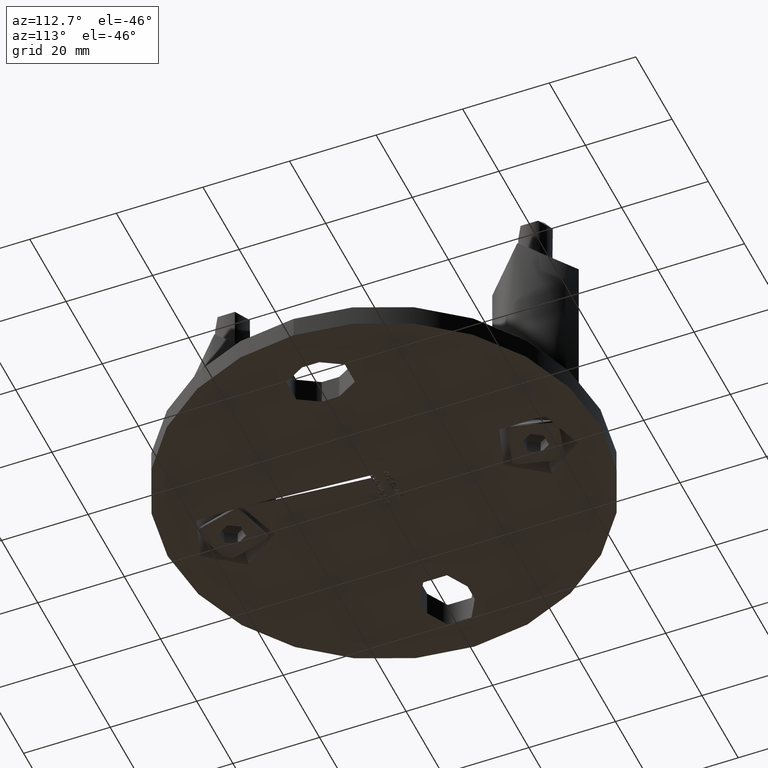
[diagram: clean part render]
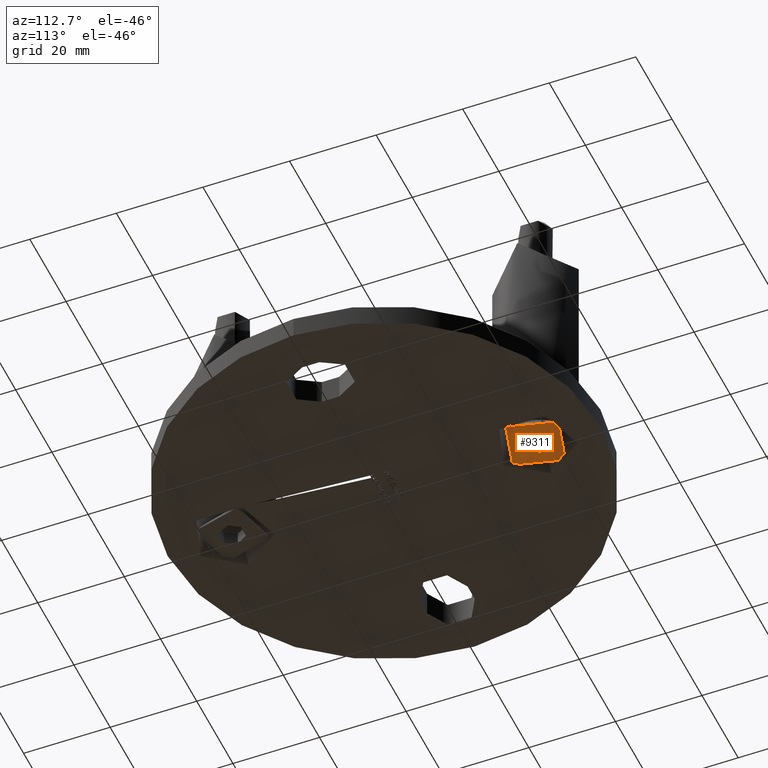
[diagram: same view with one face highlighted and labeled with its STEP entity id]
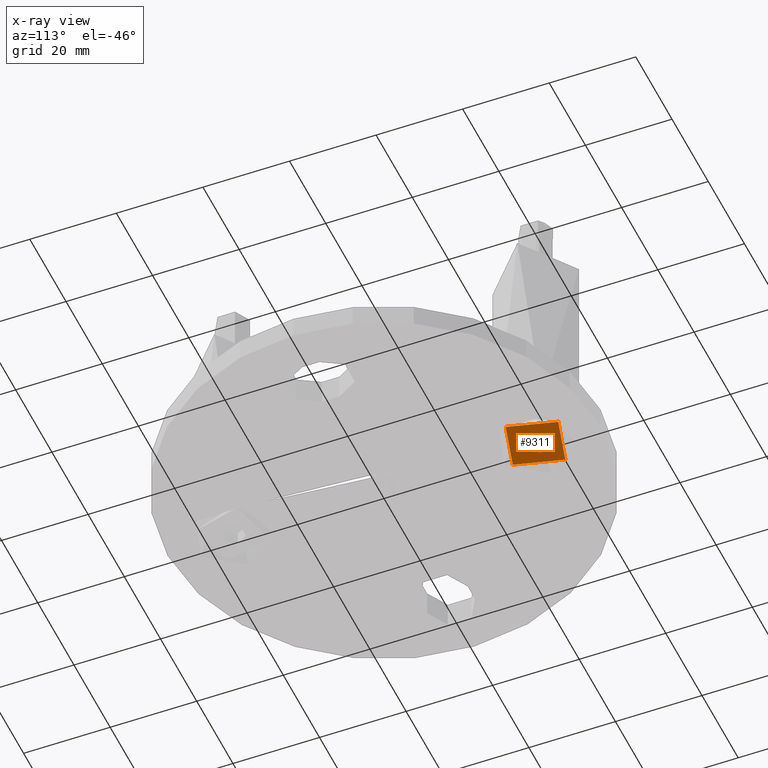
[diagram: x-ray of the same camera — body ghosted, the highlighted face saturated]
A machine part, auxiliary view. The second image highlights one B-rep face of the part: STEP entity #9311.
The next image is the same camera in x-ray: the body ghosted, the highlighted face saturated — about 0% of this face is hidden behind the body in this view.
In plain terms, the highlighted planar face has unit normal (0, 0, -1).
Its self-contained STEP definition (entity closure, byte-faithful):
#112 = CARTESIAN_POINT ( 'NONE',  ( -1.443375672974064800, 2.499999999999999600, 0.0000000000000000000 ) ) ;
#220 = VERTEX_POINT ( 'NONE', #13610 ) ;
#593 = EDGE_CURVE ( 'NONE', #220, #4972, #13020, .T. ) ;
#1370 = CARTESIAN_POINT ( 'NONE',  ( 1.443375672974064800, 2.499999999999999100, 0.0000000000000000000 ) ) ;
#2395 = ORIENTED_EDGE ( 'NONE', *, *, #9972, .F. ) ;
#2402 = DIRECTION ( 'NONE',  ( -0.5000000000000001100, -0.8660254037844384900, -0.0000000000000000000 ) ) ;
#2407 = ORIENTED_EDGE ( 'NONE', *, *, #14464, .T. ) ;
#2681 = VECTOR ( 'NONE', #5923, 1000.000000000000000 ) ;
#2832 = LINE ( 'NONE', #3736, #15077 ) ;
#3468 = CIRCLE ( 'NONE', #16210, 8.000000000000000000 ) ;
#3480 = CARTESIAN_POINT ( 'NONE',  ( -2.886751345948131300, -1.752598683377171700E-015, 0.0000000000000000000 ) ) ;
#3606 = VERTEX_POINT ( 'NONE', #13101 ) ;
#3736 = CARTESIAN_POINT ( 'NONE',  ( 2.886751345948128700, 4.839032702589593100E-016, 0.0000000000000000000 ) ) ;
#4441 = DIRECTION ( 'NONE',  ( -0.0000000000000000000, 1.224646799147353200E-016, -1.000000000000000000 ) ) ;
#4656 = EDGE_CURVE ( 'NONE', #10045, #14459, #2832, .T. ) ;
#4972 = VERTEX_POINT ( 'NONE', #9082 ) ;
#4983 = LINE ( 'NONE', #10456, #16000 ) ;
#5088 = PLANE ( 'NONE',  #15882 ) ;
#5136 = CARTESIAN_POINT ( 'NONE',  ( 0.0000000000000000000, 8.000000000000000000, 2.449293598294705900E-016 ) ) ;
#5182 = DIRECTION ( 'NONE',  ( -0.0000000000000000000, 1.224646799147353200E-016, -1.000000000000000000 ) ) ;
#5392 = DIRECTION ( 'NONE',  ( -0.4999999999999998900, 0.8660254037844386000, 0.0000000000000000000 ) ) ;
#5923 = DIRECTION ( 'NONE',  ( -1.000000000000000000, 0.0000000000000000000, 0.0000000000000000000 ) ) ;
#5969 = ORIENTED_EDGE ( 'NONE', *, *, #9701, .F. ) ;
#6145 = ORIENTED_EDGE ( 'NONE', *, *, #4656, .F. ) ;
#6216 = EDGE_CURVE ( 'NONE', #3606, #220, #4983, .T. ) ;
#6272 = VECTOR ( 'NONE', #13998, 1000.000000000000200 ) ;
#7071 = FACE_OUTER_BOUND ( 'NONE', #10198, .T. ) ;
#7101 = VERTEX_POINT ( 'NONE', #1370 ) ;
#7325 = CARTESIAN_POINT ( 'NONE',  ( 1.443375672974063200, -2.500000000000000000, -0.0000000000000000000 ) ) ;
#7396 = CARTESIAN_POINT ( 'NONE',  ( 1.443375672974064800, 2.499999999999999100, 0.0000000000000000000 ) ) ;
#7491 = FACE_BOUND ( 'NONE', #7748, .T. ) ;
#7748 = EDGE_LOOP ( 'NONE', ( #9206, #2395, #6145, #5969, #8699, #9419 ) ) ;
#8271 = CARTESIAN_POINT ( 'NONE',  ( 0.0000000000000000000, 1.799711739194229100E-031, -1.469576158976823900E-015 ) ) ;
#8633 = LINE ( 'NONE', #7325, #2681 ) ;
#8699 = ORIENTED_EDGE ( 'NONE', *, *, #10618, .F. ) ;
#8807 = VECTOR ( 'NONE', #8821, 1000.000000000000000 ) ;
#8821 = DIRECTION ( 'NONE',  ( 1.000000000000000000, -1.502314598737159000E-016, 0.0000000000000000000 ) ) ;
#9029 = LINE ( 'NONE', #7396, #6272 ) ;
#9082 = CARTESIAN_POINT ( 'NONE',  ( -1.443375672974064800, 2.499999999999999600, 0.0000000000000000000 ) ) ;
#9206 = ORIENTED_EDGE ( 'NONE', *, *, #6216, .F. ) ;
#9311 = ADVANCED_FACE ( 'NONE', ( #7491, #7071 ), #5088, .T. ) ;
#9419 = ORIENTED_EDGE ( 'NONE', *, *, #593, .F. ) ;
#9701 = EDGE_CURVE ( 'NONE', #7101, #10045, #9029, .T. ) ;
#9972 = EDGE_CURVE ( 'NONE', #14459, #3606, #8633, .T. ) ;
#10045 = VERTEX_POINT ( 'NONE', #12273 ) ;
#10198 = EDGE_LOOP ( 'NONE', ( #2407 ) ) ;
#10456 = CARTESIAN_POINT ( 'NONE',  ( -1.443375672974067700, -2.500000000000000000, 0.0000000000000000000 ) ) ;
#10618 = EDGE_CURVE ( 'NONE', #4972, #7101, #11166, .T. ) ;
#10920 = VERTEX_POINT ( 'NONE', #15944 ) ;
#11166 = LINE ( 'NONE', #112, #8807 ) ;
#12057 = CARTESIAN_POINT ( 'NONE',  ( 1.443375672974063200, -2.500000000000000000, -0.0000000000000000000 ) ) ;
#12273 = CARTESIAN_POINT ( 'NONE',  ( 2.886751345948128700, 4.839032702589593100E-016, 0.0000000000000000000 ) ) ;
#12317 = DIRECTION ( 'NONE',  ( 0.5000000000000003300, 0.8660254037844383700, 0.0000000000000000000 ) ) ;
#13020 = LINE ( 'NONE', #3480, #15172 ) ;
#13101 = CARTESIAN_POINT ( 'NONE',  ( -1.443375672974067700, -2.500000000000000000, 0.0000000000000000000 ) ) ;
#13610 = CARTESIAN_POINT ( 'NONE',  ( -2.886751345948130000, -8.673617379884035500E-016, -7.347880794884120700E-016 ) ) ;
#13921 = DIRECTION ( 'NONE',  ( 0.0000000000000000000, 1.000000000000000000, 1.224646799147353200E-016 ) ) ;
#13998 = DIRECTION ( 'NONE',  ( 0.5000000000000000000, -0.8660254037844386000, 0.0000000000000000000 ) ) ;
#14459 = VERTEX_POINT ( 'NONE', #12057 ) ;
#14464 = EDGE_CURVE ( 'NONE', #10920, #10920, #3468, .T. ) ;
#15077 = VECTOR ( 'NONE', #2402, 1000.000000000000200 ) ;
#15172 = VECTOR ( 'NONE', #12317, 1000.000000000000200 ) ;
#15882 = AXIS2_PLACEMENT_3D ( 'NONE', #5136, #5182, #13921 ) ;
#15944 = CARTESIAN_POINT ( 'NONE',  ( 0.0000000000000000000, 8.000000000000000000, -4.898587196589413800E-016 ) ) ;
#15946 = DIRECTION ( 'NONE',  ( 0.0000000000000000000, 1.000000000000000000, 1.224646799147353200E-016 ) ) ;
#16000 = VECTOR ( 'NONE', #5392, 1000.000000000000200 ) ;
#16210 = AXIS2_PLACEMENT_3D ( 'NONE', #8271, #4441, #15946 ) ;